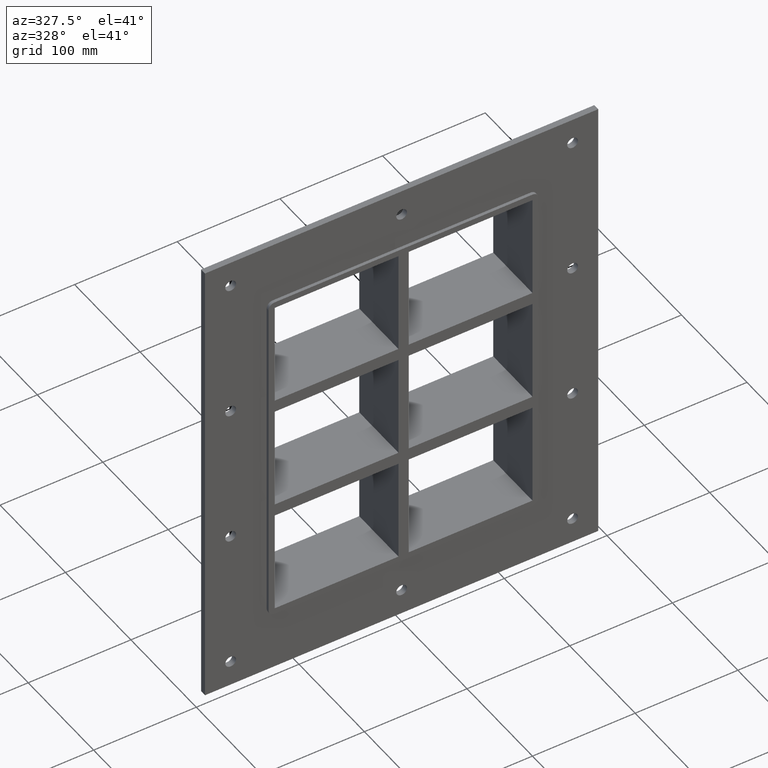
[diagram: clean part render]
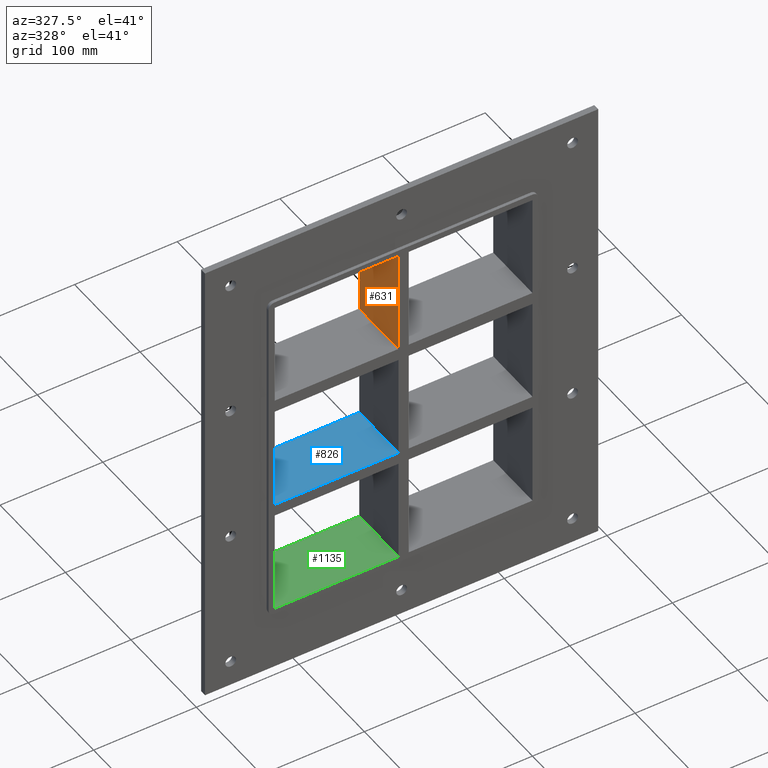
[diagram: same view with three faces highlighted in distinct colors, each labeled with its STEP entity id]
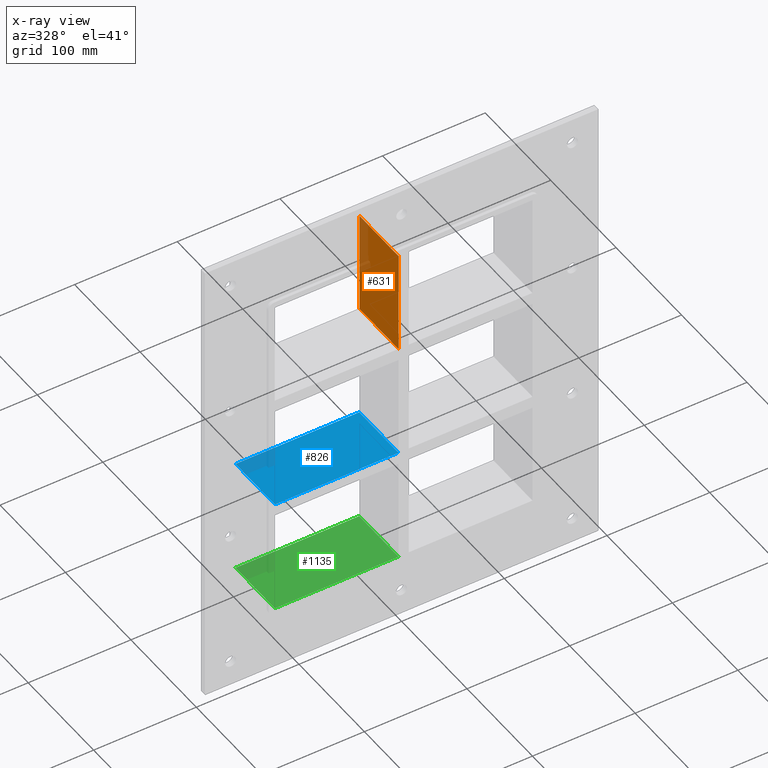
[diagram: x-ray of the same camera — body ghosted, the three highlighted faces saturated]
A machine part, auxiliary view with three faces highlighted in distinct colors.
The next image is the same camera in x-ray (body ghosted, the three faces saturated) — at least one of them is partly hidden behind the body in this view.
Their STEP definitions:

[orange] entity #631 — the highlighted planar face has unit normal (-1, 0, 0).
#433=CARTESIAN_POINT('',(-5.000000000002056,57.0,62.499999999999893));
#434=VERTEX_POINT('',#433);
#435=CARTESIAN_POINT('',(-5.000000000002061,-3.0,62.499999999999893));
#436=VERTEX_POINT('',#435);
#437=CARTESIAN_POINT('',(-5.000000000002061,57.0,62.499999999999893));
#438=DIRECTION('',(0.0,-1.0,0.0));
#439=VECTOR('',#438,60.0);
#440=LINE('',#437,#439);
#441=EDGE_CURVE('',#434,#436,#440,.T.);
#601=CARTESIAN_POINT('',(-5.000000000002007,-3.0,-163.5));
#602=DIRECTION('',(-1.0,0.0,0.0));
#603=DIRECTION('',(0.0,0.0,1.0));
#604=AXIS2_PLACEMENT_3D('',#601,#602,#603);
#605=PLANE('',#604);
#606=ORIENTED_EDGE('',*,*,#441,.T.);
#607=CARTESIAN_POINT('',(-5.000000000002078,-3.0,163.5));
#608=VERTEX_POINT('',#607);
#609=CARTESIAN_POINT('',(-5.000000000002056,-3.0,62.499999999999915));
#610=DIRECTION('',(0.0,0.0,1.0));
#611=VECTOR('',#610,101.00000000000009);
#612=LINE('',#609,#611);
#613=EDGE_CURVE('',#436,#608,#612,.T.);
#614=ORIENTED_EDGE('',*,*,#613,.T.);
#615=CARTESIAN_POINT('',(-5.000000000002078,57.0,163.5));
#616=VERTEX_POINT('',#615);
#617=CARTESIAN_POINT('',(-5.000000000002078,57.000000000000007,163.5));
#618=DIRECTION('',(0.0,-1.0,0.0));
#619=VECTOR('',#618,60.000000000000007);
#620=LINE('',#617,#619);
#621=EDGE_CURVE('',#616,#608,#620,.T.);
#622=ORIENTED_EDGE('',*,*,#621,.F.);
#623=CARTESIAN_POINT('',(-5.000000000002056,57.0,62.499999999999915));
#624=DIRECTION('',(0.0,0.0,1.0));
#625=VECTOR('',#624,101.00000000000009);
#626=LINE('',#623,#625);
#627=EDGE_CURVE('',#434,#616,#626,.T.);
#628=ORIENTED_EDGE('',*,*,#627,.F.);
#629=EDGE_LOOP('',(#606,#614,#622,#628));
#630=FACE_OUTER_BOUND('',#629,.T.);
#631=ADVANCED_FACE('',(#630),#605,.T.);

[blue] entity #826 — the highlighted planar face has unit normal (0, 0, 1).
#514=CARTESIAN_POINT('',(-125.50000000000041,-3.0,-50.500000000000114));
#515=VERTEX_POINT('',#514);
#522=CARTESIAN_POINT('',(-125.50000000000041,57.0,-50.500000000000114));
#523=VERTEX_POINT('',#522);
#524=CARTESIAN_POINT('',(-125.49999999999997,-3.0,-50.500000000000114));
#525=DIRECTION('',(0.0,1.0,0.0));
#526=VECTOR('',#525,60.000000000000007);
#527=LINE('',#524,#526);
#528=EDGE_CURVE('',#515,#523,#527,.T.);
#638=CARTESIAN_POINT('',(-5.000000000002025,57.0,-50.500000000000114));
#639=VERTEX_POINT('',#638);
#646=CARTESIAN_POINT('',(-5.000000000002025,-3.0,-50.500000000000114));
#647=VERTEX_POINT('',#646);
#648=CARTESIAN_POINT('',(-5.000000000002034,57.0,-50.500000000000114));
#649=DIRECTION('',(0.0,-1.0,0.0));
#650=VECTOR('',#649,60.0);
#651=LINE('',#648,#650);
#652=EDGE_CURVE('',#639,#647,#651,.T.);
#805=CARTESIAN_POINT('',(-125.50000000000041,-3.0,-50.500000000000114));
#806=DIRECTION('',(0.0,0.0,1.0));
#807=DIRECTION('',(1.0,0.0,0.0));
#808=AXIS2_PLACEMENT_3D('',#805,#806,#807);
#809=PLANE('',#808);
#810=ORIENTED_EDGE('',*,*,#652,.F.);
#811=CARTESIAN_POINT('',(-125.50000000000041,57.0,-50.500000000000114));
#812=DIRECTION('',(1.0,0.0,0.0));
#813=VECTOR('',#812,120.49999999999839);
#814=LINE('',#811,#813);
#815=EDGE_CURVE('',#523,#639,#814,.T.);
#816=ORIENTED_EDGE('',*,*,#815,.F.);
#817=ORIENTED_EDGE('',*,*,#528,.F.);
#818=CARTESIAN_POINT('',(-125.50000000000041,-3.0,-50.500000000000114));
#819=DIRECTION('',(1.0,0.0,0.0));
#820=VECTOR('',#819,120.49999999999839);
#821=LINE('',#818,#820);
#822=EDGE_CURVE('',#515,#647,#821,.T.);
#823=ORIENTED_EDGE('',*,*,#822,.T.);
#824=EDGE_LOOP('',(#810,#816,#817,#823));
#825=FACE_OUTER_BOUND('',#824,.T.);
#826=ADVANCED_FACE('',(#825),#809,.T.);

[green] entity #1135 — the highlighted planar face has unit normal (0, 0, -1).
#1003=CARTESIAN_POINT('',(-125.49999999999997,57.0,-163.5));
#1004=VERTEX_POINT('',#1003);
#1011=CARTESIAN_POINT('',(-5.000000000002007,57.0,-163.5));
#1012=VERTEX_POINT('',#1011);
#1013=CARTESIAN_POINT('',(-125.49999999999997,57.0,-163.5));
#1014=DIRECTION('',(1.0,0.0,0.0));
#1015=VECTOR('',#1014,120.49999999999795);
#1016=LINE('',#1013,#1015);
#1017=EDGE_CURVE('',#1004,#1012,#1016,.T.);
#1071=CARTESIAN_POINT('',(-5.000000000002007,-3.0,-163.5));
#1072=VERTEX_POINT('',#1071);
#1073=CARTESIAN_POINT('',(-5.000000000002007,-3.0,-163.5));
#1074=DIRECTION('',(0.0,1.0,0.0));
#1075=VECTOR('',#1074,60.000000000000007);
#1076=LINE('',#1073,#1075);
#1077=EDGE_CURVE('',#1072,#1012,#1076,.T.);
#1112=CARTESIAN_POINT('',(125.50000000000004,0.0,-163.5));
#1113=DIRECTION('',(0.0,0.0,-1.0));
#1114=DIRECTION('',(-1.0,0.0,0.0));
#1115=AXIS2_PLACEMENT_3D('',#1112,#1113,#1114);
#1116=PLANE('',#1115);
#1117=ORIENTED_EDGE('',*,*,#1077,.T.);
#1118=ORIENTED_EDGE('',*,*,#1017,.F.);
#1119=CARTESIAN_POINT('',(-125.49999999999997,-3.0,-163.5));
#1120=VERTEX_POINT('',#1119);
#1121=CARTESIAN_POINT('',(-125.49999999999997,-3.0,-163.5));
#1122=DIRECTION('',(0.0,1.0,0.0));
#1123=VECTOR('',#1122,60.0);
#1124=LINE('',#1121,#1123);
#1125=EDGE_CURVE('',#1120,#1004,#1124,.T.);
#1126=ORIENTED_EDGE('',*,*,#1125,.F.);
#1127=CARTESIAN_POINT('',(-5.000000000002011,-3.0,-163.5));
#1128=DIRECTION('',(-1.0,0.0,0.0));
#1129=VECTOR('',#1128,120.49999999999795);
#1130=LINE('',#1127,#1129);
#1131=EDGE_CURVE('',#1072,#1120,#1130,.T.);
#1132=ORIENTED_EDGE('',*,*,#1131,.F.);
#1133=EDGE_LOOP('',(#1117,#1118,#1126,#1132));
#1134=FACE_OUTER_BOUND('',#1133,.T.);
#1135=ADVANCED_FACE('',(#1134),#1116,.F.);